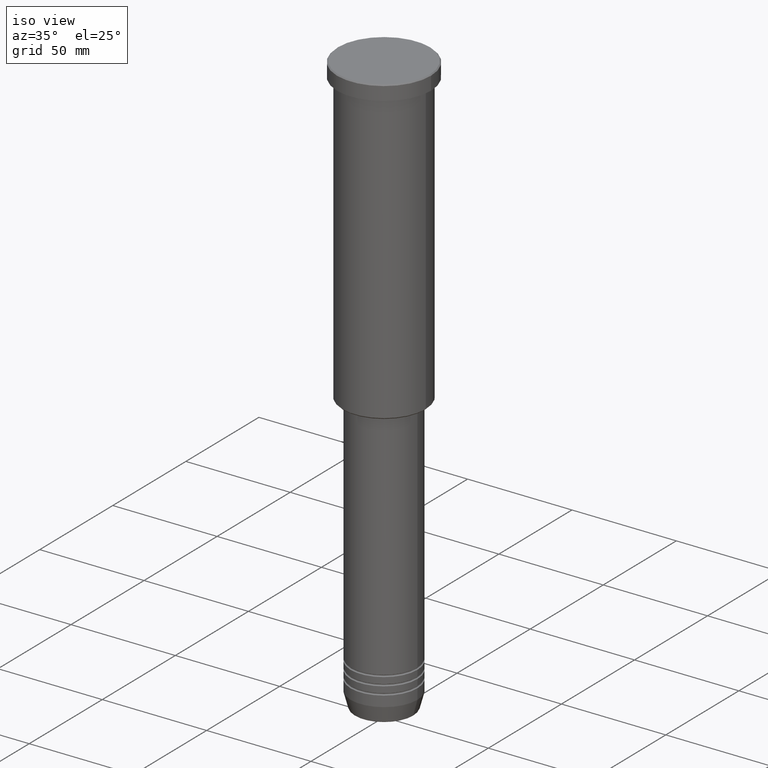
[diagram: clean part render]
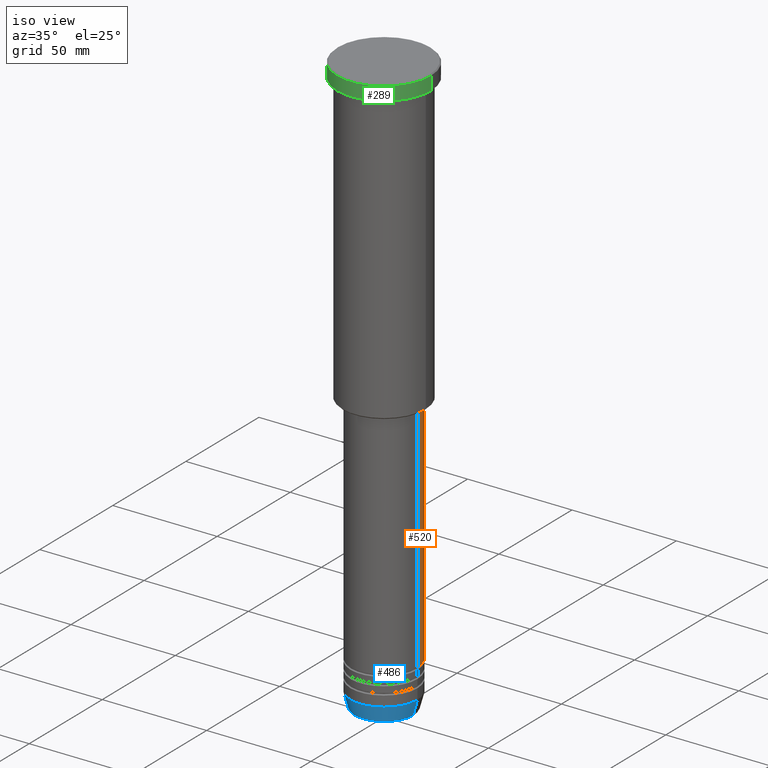
[diagram: same view with three faces highlighted in distinct colors, each labeled with its STEP entity id]
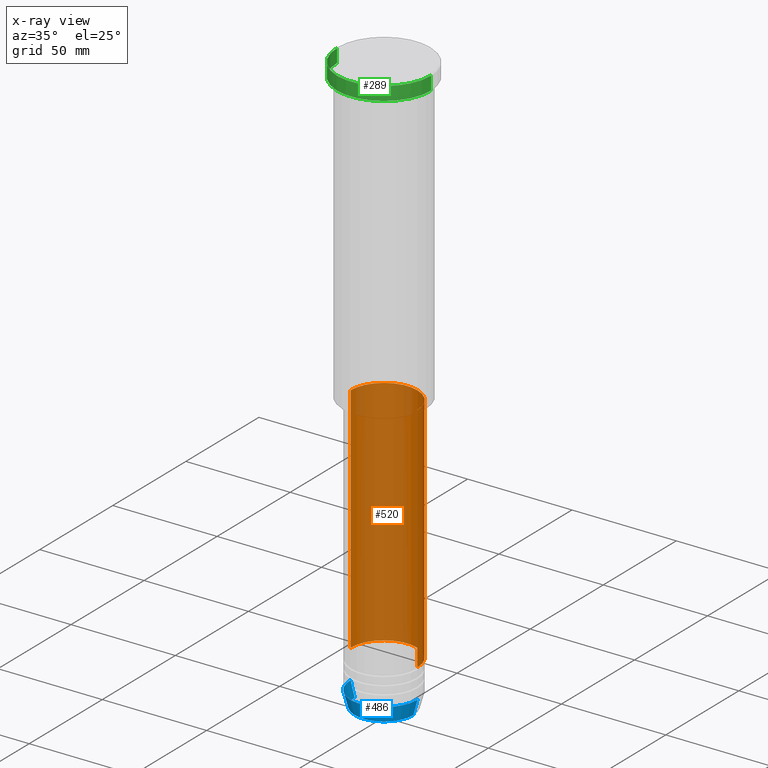
[diagram: x-ray of the same camera — body ghosted, the three highlighted faces saturated]
A machine part, iso view with three faces highlighted in distinct colors.
The next image is the same camera in x-ray (body ghosted, the three faces saturated) — at least one of them is partly hidden behind the body in this view.
Their STEP definitions:

[orange] entity #520 — the highlighted cylindrical surface (partial cylindrical patch) has radius 16 mm, axis along (-0, -0, 1).
#38 = CIRCLE ( 'NONE', #55, 16.00000000000000000 ) ;
#40 = CIRCLE ( 'NONE', #600, 16.00000000000000000 ) ;
#45 = CARTESIAN_POINT ( 'NONE',  ( 0.000000000000000000, 0.000000000000000000, -147.0000000000000000 ) ) ;
#51 = EDGE_CURVE ( 'NONE', #668, #160, #40, .T. ) ;
#55 = AXIS2_PLACEMENT_3D ( 'NONE', #45, #415, #781 ) ;
#62 = CARTESIAN_POINT ( 'NONE',  ( -16.00000000000000000, 1.959434878635765131E-15, 0.000000000000000000 ) ) ;
#160 = VERTEX_POINT ( 'NONE', #587 ) ;
#169 = AXIS2_PLACEMENT_3D ( 'NONE', #831, #984, #904 ) ;
#190 = ORIENTED_EDGE ( 'NONE', *, *, #434, .T. ) ;
#374 = EDGE_CURVE ( 'NONE', #693, #572, #38, .T. ) ;
#385 = CARTESIAN_POINT ( 'NONE',  ( 16.00000000000000000, 0.000000000000000000, -258.5000000000000000 ) ) ;
#400 = CYLINDRICAL_SURFACE ( 'NONE', #169, 16.00000000000000000 ) ;
#415 = DIRECTION ( 'NONE',  ( -0.000000000000000000, -0.000000000000000000, 1.000000000000000000 ) ) ;
#433 = DIRECTION ( 'NONE',  ( -0.000000000000000000, -0.000000000000000000, 1.000000000000000000 ) ) ;
#434 = EDGE_CURVE ( 'NONE', #160, #572, #886, .T. ) ;
#461 = VECTOR ( 'NONE', #611, 1000.000000000000000 ) ;
#512 = LINE ( 'NONE', #1067, #461 ) ;
#520 = ADVANCED_FACE ( 'NONE', ( #647 ), #400, .T. ) ;
#539 = DIRECTION ( 'NONE',  ( 1.000000000000000000, 0.000000000000000000, 0.000000000000000000 ) ) ;
#572 = VERTEX_POINT ( 'NONE', #1041 ) ;
#579 = ORIENTED_EDGE ( 'NONE', *, *, #731, .F. ) ;
#587 = CARTESIAN_POINT ( 'NONE',  ( -16.00000000000000000, 1.959434878635765131E-15, -258.5000000000000000 ) ) ;
#600 = AXIS2_PLACEMENT_3D ( 'NONE', #1081, #642, #539 ) ;
#611 = DIRECTION ( 'NONE',  ( -0.000000000000000000, -0.000000000000000000, 1.000000000000000000 ) ) ;
#642 = DIRECTION ( 'NONE',  ( -0.000000000000000000, -0.000000000000000000, 1.000000000000000000 ) ) ;
#647 = FACE_OUTER_BOUND ( 'NONE', #1179, .T. ) ;
#668 = VERTEX_POINT ( 'NONE', #385 ) ;
#693 = VERTEX_POINT ( 'NONE', #931 ) ;
#731 = EDGE_CURVE ( 'NONE', #668, #693, #512, .T. ) ;
#735 = VECTOR ( 'NONE', #433, 1000.000000000000000 ) ;
#781 = DIRECTION ( 'NONE',  ( 1.000000000000000000, 0.000000000000000000, 0.000000000000000000 ) ) ;
#831 = CARTESIAN_POINT ( 'NONE',  ( 0.000000000000000000, 0.000000000000000000, 0.000000000000000000 ) ) ;
#886 = LINE ( 'NONE', #62, #735 ) ;
#904 = DIRECTION ( 'NONE',  ( 1.000000000000000000, 0.000000000000000000, 0.000000000000000000 ) ) ;
#931 = CARTESIAN_POINT ( 'NONE',  ( 16.00000000000000000, 0.000000000000000000, -147.0000000000000000 ) ) ;
#984 = DIRECTION ( 'NONE',  ( -0.000000000000000000, -0.000000000000000000, 1.000000000000000000 ) ) ;
#1012 = ORIENTED_EDGE ( 'NONE', *, *, #51, .T. ) ;
#1041 = CARTESIAN_POINT ( 'NONE',  ( -16.00000000000000000, 1.959434878635765131E-15, -147.0000000000000000 ) ) ;
#1067 = CARTESIAN_POINT ( 'NONE',  ( 16.00000000000000000, 0.000000000000000000, 0.000000000000000000 ) ) ;
#1081 = CARTESIAN_POINT ( 'NONE',  ( 0.000000000000000000, 0.000000000000000000, -258.5000000000000000 ) ) ;
#1175 = ORIENTED_EDGE ( 'NONE', *, *, #374, .F. ) ;
#1179 = EDGE_LOOP ( 'NONE', ( #1012, #190, #1175, #579 ) ) ;

[blue] entity #486 — the highlighted conical surface has half-angle 15 deg.
#8 = CARTESIAN_POINT ( 'NONE',  ( -14.08968047592161632, 1.842461544110200874E-15, -279.6294095225512706 ) ) ;
#42 = VECTOR ( 'NONE', #458, 1000.000000000000000 ) ;
#52 = EDGE_LOOP ( 'NONE', ( #752, #1119, #88, #1037 ) ) ;
#56 = CIRCLE ( 'NONE', #972, 16.00000000000000000 ) ;
#86 = LINE ( 'NONE', #163, #42 ) ;
#88 = ORIENTED_EDGE ( 'NONE', *, *, #567, .T. ) ;
#89 = LINE ( 'NONE', #1094, #541 ) ;
#138 = DIRECTION ( 'NONE',  ( -0.000000000000000000, -0.000000000000000000, 1.000000000000000000 ) ) ;
#149 = EDGE_CURVE ( 'NONE', #215, #1111, #86, .T. ) ;
#163 = CARTESIAN_POINT ( 'NONE',  ( -16.00000000000000000, 1.959434878635765131E-15, -272.5000000000000000 ) ) ;
#215 = VERTEX_POINT ( 'NONE', #8 ) ;
#249 = CARTESIAN_POINT ( 'NONE',  ( 0.000000000000000000, 0.000000000000000000, -279.6294095225512706 ) ) ;
#274 = VERTEX_POINT ( 'NONE', #830 ) ;
#291 = DIRECTION ( 'NONE',  ( -0.000000000000000000, -0.000000000000000000, 1.000000000000000000 ) ) ;
#344 = CIRCLE ( 'NONE', #897, 14.08968047592161632 ) ;
#383 = CARTESIAN_POINT ( 'NONE',  ( 14.08968047592161632, 0.000000000000000000, -279.6294095225512706 ) ) ;
#438 = EDGE_CURVE ( 'NONE', #215, #1082, #344, .T. ) ;
#458 = DIRECTION ( 'NONE',  ( -0.2588190451025213501, 3.169619151431772337E-17, 0.9659258262890680902 ) ) ;
#472 = CARTESIAN_POINT ( 'NONE',  ( 0.000000000000000000, 0.000000000000000000, -272.5000000000000000 ) ) ;
#486 = ADVANCED_FACE ( 'NONE', ( #1072 ), #602, .T. ) ;
#541 = VECTOR ( 'NONE', #926, 1000.000000000000000 ) ;
#567 = EDGE_CURVE ( 'NONE', #1082, #274, #89, .T. ) ;
#602 = CONICAL_SURFACE ( 'NONE', #753, 16.00000000000000000, 0.2617993877991500740 ) ;
#620 = DIRECTION ( 'NONE',  ( -0.000000000000000000, -0.000000000000000000, 1.000000000000000000 ) ) ;
#624 = DIRECTION ( 'NONE',  ( 1.000000000000000000, 0.000000000000000000, 0.000000000000000000 ) ) ;
#692 = DIRECTION ( 'NONE',  ( 1.000000000000000000, 0.000000000000000000, 0.000000000000000000 ) ) ;
#695 = DIRECTION ( 'NONE',  ( 1.000000000000000000, 0.000000000000000000, 0.000000000000000000 ) ) ;
#752 = ORIENTED_EDGE ( 'NONE', *, *, #149, .F. ) ;
#753 = AXIS2_PLACEMENT_3D ( 'NONE', #472, #291, #692 ) ;
#763 = EDGE_CURVE ( 'NONE', #1111, #274, #56, .T. ) ;
#765 = CARTESIAN_POINT ( 'NONE',  ( -16.00000000000000000, 1.959434878635765131E-15, -272.5000000000000000 ) ) ;
#794 = CARTESIAN_POINT ( 'NONE',  ( 0.000000000000000000, 0.000000000000000000, -272.5000000000000000 ) ) ;
#830 = CARTESIAN_POINT ( 'NONE',  ( 16.00000000000000000, 0.000000000000000000, -272.5000000000000000 ) ) ;
#897 = AXIS2_PLACEMENT_3D ( 'NONE', #249, #620, #695 ) ;
#926 = DIRECTION ( 'NONE',  ( 0.2588190451025213501, 0.000000000000000000, 0.9659258262890680902 ) ) ;
#972 = AXIS2_PLACEMENT_3D ( 'NONE', #794, #138, #624 ) ;
#1037 = ORIENTED_EDGE ( 'NONE', *, *, #763, .F. ) ;
#1072 = FACE_OUTER_BOUND ( 'NONE', #52, .T. ) ;
#1082 = VERTEX_POINT ( 'NONE', #383 ) ;
#1094 = CARTESIAN_POINT ( 'NONE',  ( 16.00000000000000000, 0.000000000000000000, -272.5000000000000000 ) ) ;
#1111 = VERTEX_POINT ( 'NONE', #765 ) ;
#1119 = ORIENTED_EDGE ( 'NONE', *, *, #438, .T. ) ;

[green] entity #289 — the highlighted cylindrical surface (partial cylindrical patch) has radius 22.5 mm, axis along (-0, -0, 1).
#16 = EDGE_CURVE ( 'NONE', #177, #330, #167, .T. ) ;
#70 = CARTESIAN_POINT ( 'NONE',  ( 22.50000000000000000, 0.000000000000000000, 0.000000000000000000 ) ) ;
#73 = EDGE_CURVE ( 'NONE', #911, #102, #912, .T. ) ;
#102 = VERTEX_POINT ( 'NONE', #1075 ) ;
#108 = ORIENTED_EDGE ( 'NONE', *, *, #16, .T. ) ;
#167 = LINE ( 'NONE', #70, #915 ) ;
#177 = VERTEX_POINT ( 'NONE', #946 ) ;
#194 = CARTESIAN_POINT ( 'NONE',  ( 22.50000000000000000, 0.000000000000000000, -0.4999999999999379940 ) ) ;
#217 = DIRECTION ( 'NONE',  ( 1.000000000000000000, 0.000000000000000000, 0.000000000000000000 ) ) ;
#266 = DIRECTION ( 'NONE',  ( -0.000000000000000000, -0.000000000000000000, 1.000000000000000000 ) ) ;
#289 = ADVANCED_FACE ( 'NONE', ( #729 ), #813, .T. ) ;
#330 = VERTEX_POINT ( 'NONE', #194 ) ;
#361 = EDGE_CURVE ( 'NONE', #911, #177, #828, .T. ) ;
#365 = AXIS2_PLACEMENT_3D ( 'NONE', #939, #686, #217 ) ;
#418 = EDGE_LOOP ( 'NONE', ( #1077, #684, #108, #900 ) ) ;
#432 = CARTESIAN_POINT ( 'NONE',  ( 0.000000000000000000, 0.000000000000000000, -0.4999999999999379940 ) ) ;
#528 = DIRECTION ( 'NONE',  ( 1.000000000000000000, 0.000000000000000000, 0.000000000000000000 ) ) ;
#537 = DIRECTION ( 'NONE',  ( 1.000000000000000000, 0.000000000000000000, 0.000000000000000000 ) ) ;
#538 = DIRECTION ( 'NONE',  ( -0.000000000000000000, -0.000000000000000000, 1.000000000000000000 ) ) ;
#684 = ORIENTED_EDGE ( 'NONE', *, *, #361, .T. ) ;
#686 = DIRECTION ( 'NONE',  ( -0.000000000000000000, -0.000000000000000000, 1.000000000000000000 ) ) ;
#729 = FACE_OUTER_BOUND ( 'NONE', #418, .T. ) ;
#751 = VECTOR ( 'NONE', #266, 1000.000000000000000 ) ;
#782 = EDGE_CURVE ( 'NONE', #330, #102, #844, .T. ) ;
#783 = DIRECTION ( 'NONE',  ( 0.000000000000000000, 0.000000000000000000, -1.000000000000000000 ) ) ;
#813 = CYLINDRICAL_SURFACE ( 'NONE', #1065, 22.50000000000000000 ) ;
#828 = CIRCLE ( 'NONE', #365, 22.50000000000000000 ) ;
#844 = CIRCLE ( 'NONE', #914, 22.50000000000000000 ) ;
#899 = CARTESIAN_POINT ( 'NONE',  ( -22.50000000000000000, 2.755455298081544778E-15, 0.000000000000000000 ) ) ;
#900 = ORIENTED_EDGE ( 'NONE', *, *, #782, .T. ) ;
#911 = VERTEX_POINT ( 'NONE', #981 ) ;
#912 = LINE ( 'NONE', #899, #751 ) ;
#914 = AXIS2_PLACEMENT_3D ( 'NONE', #432, #783, #528 ) ;
#915 = VECTOR ( 'NONE', #538, 1000.000000000000000 ) ;
#939 = CARTESIAN_POINT ( 'NONE',  ( 0.000000000000000000, 0.000000000000000000, -6.999999999999995559 ) ) ;
#946 = CARTESIAN_POINT ( 'NONE',  ( 22.50000000000000000, 0.000000000000000000, -6.999999999999995559 ) ) ;
#981 = CARTESIAN_POINT ( 'NONE',  ( -22.50000000000000000, 2.755455298081544778E-15, -6.999999999999995559 ) ) ;
#982 = DIRECTION ( 'NONE',  ( -0.000000000000000000, -0.000000000000000000, 1.000000000000000000 ) ) ;
#1065 = AXIS2_PLACEMENT_3D ( 'NONE', #1074, #982, #537 ) ;
#1074 = CARTESIAN_POINT ( 'NONE',  ( 0.000000000000000000, 0.000000000000000000, 0.000000000000000000 ) ) ;
#1075 = CARTESIAN_POINT ( 'NONE',  ( -22.50000000000000000, 2.755455298081544778E-15, -0.4999999999999379940 ) ) ;
#1077 = ORIENTED_EDGE ( 'NONE', *, *, #73, .F. ) ;